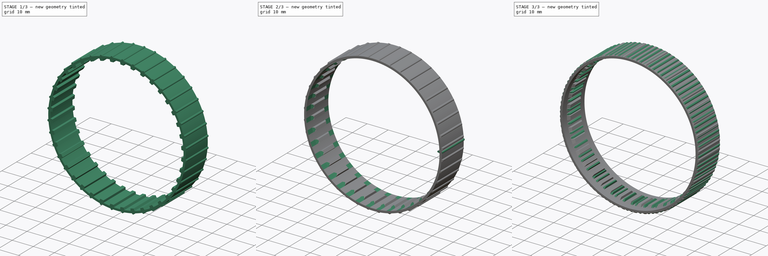
[diagram: build sequence overview — one tinted view per stage of 3, left to right]
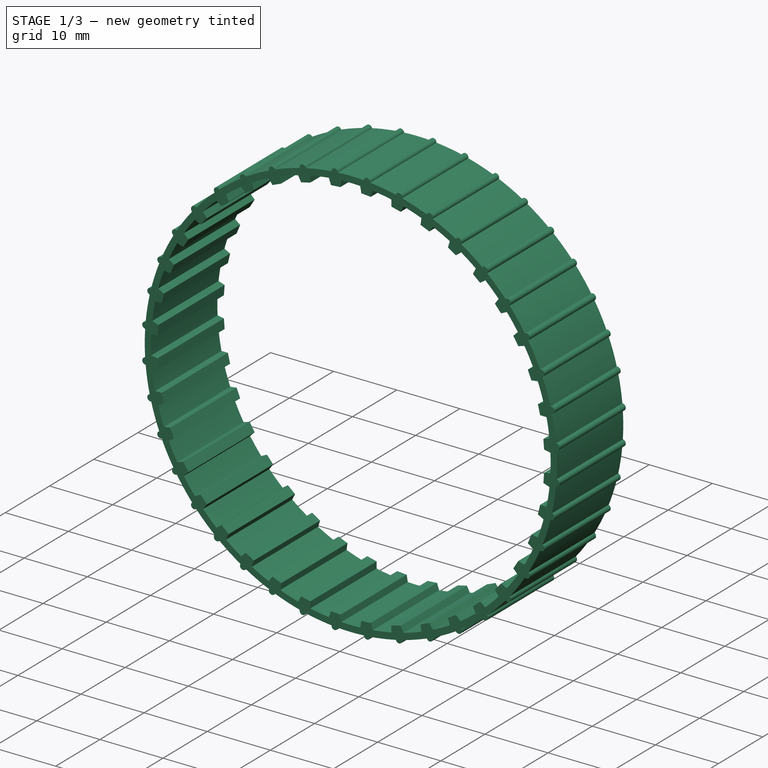
[diagram: stage 1 of 3 — iso view after this stage's code; geometry added in this stage tinted green]
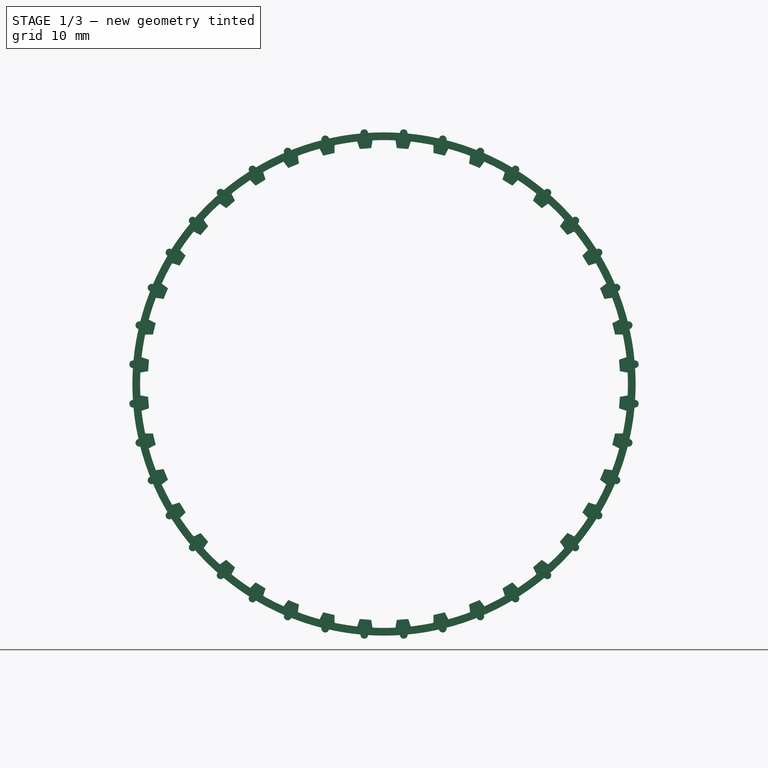
[diagram: stage 1 of 3 — front view after this stage's code; geometry added in this stage tinted green]
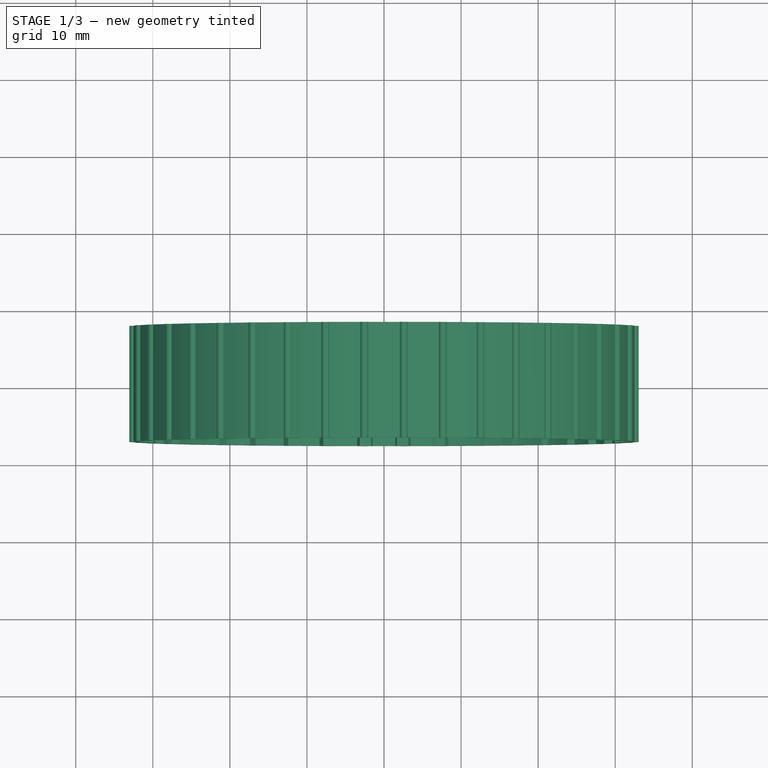
[diagram: stage 1 of 3 — top view after this stage's code; geometry added in this stage tinted green]
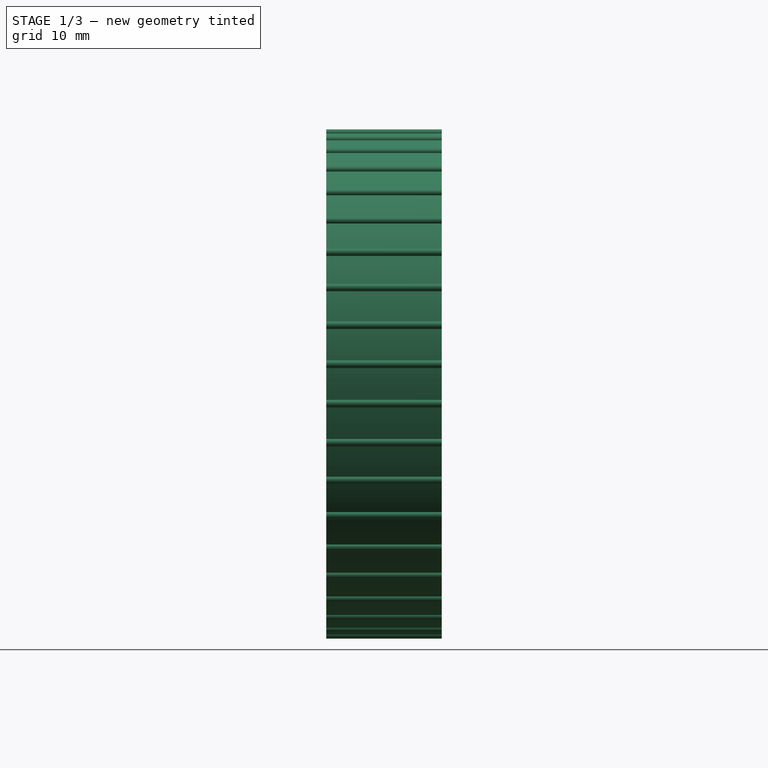
[diagram: stage 1 of 3 — right view after this stage's code; geometry added in this stage tinted green]
FCSTD DOCUMENT  (FreeCAD 0.21R33668 +7 (Git))
Label: robot-track-flex
License: All rights reserved
LicenseURL: https://en.wikipedia.org/wiki/All_rights_reserved
objects: Sketcher::SketchObject×4, PartDesign::Pad×2, PartDesign::PolarPattern×2, PartDesign::Groove×2, PartDesign::Body×2
note: 16 computed .brp shape members not serialized (recipe doc carries the construction recipe); baked Part::Feature solids carry a one-line shape summary decoded from their .brp

FEATURE [PartDesign::Body] Body  label="2mm"
  Group = -> [Sketch,Pad,PolarPattern,Sketch001,Groove]
  Origin = -> Origin
  Tip = -> Groove
FEATURE [Sketcher::SketchObject] Sketch002
  FullyConstrained = true
  MapMode = 5
  Placement = pos=(0,0,0) rot=(1,0,0;1.5708rad)
  Support = -> [XZ_Plane001]
  sketch-geometry (17):
    g0: Circle CenterX=0 CenterY=0 CenterZ=0 NormalX=0 NormalY=0 NormalZ=1 AngleXU=0 Radius=32.15
    g1: LineSegment StartX=0 StartY=0 StartZ=0 EndX=32.248 EndY=5.10759 EndZ=0
    g2: LineSegment StartX=30.4967 StartY=3.15246 StartZ=0 EndX=31.4582 EndY=3.47891 EndZ=0
    g3: LineSegment StartX=30.4967 StartY=3.15246 StartZ=0 EndX=30.6144 EndY=1.65708 EndZ=0
    g4: LineSegment StartX=31.6151 StartY=1.48507 StartZ=0 EndX=30.6144 EndY=1.65708 EndZ=0
    g5: ArcOfCircle CenterX=32.5494 CenterY=2.56169 CenterZ=0 NormalX=0 NormalY=0 NormalZ=1 AngleXU=0 Radius=0.5 StartAngle=4.78327 EndAngle=7.94018
    g6: LineSegment StartX=32.248 StartY=5.10759 StartZ=0 EndX=31.2603 EndY=4.95115 EndZ=0
    g7: ArcOfCircle CenterX=0 CenterY=0 CenterZ=0 NormalX=0 NormalY=0 NormalZ=1 AngleXU=0 Radius=31.65 StartAngle=0.110141 EndAngle=0.15708
    g8: ArcOfCircle CenterX=0 CenterY=0 CenterZ=0 NormalX=0 NormalY=0 NormalZ=1 AngleXU=0 Radius=31.65 StartAngle=0 EndAngle=0.046939
    g9: ArcOfCircle CenterX=0 CenterY=0 CenterZ=0 NormalX=0 NormalY=0 NormalZ=1 AngleXU=0 Radius=32.65 StartAngle=0.0938539 EndAngle=0.15708
    g10: ArcOfCircle CenterX=0 CenterY=0 CenterZ=0 NormalX=0 NormalY=0 NormalZ=1 AngleXU=0 Radius=32.65 StartAngle=0 EndAngle=0.0632257
    g11: LineSegment StartX=31.65 StartY=0 StartZ=0 EndX=32.65 EndY=0 EndZ=0
    g12: LineSegment StartX=32.5494 StartY=2.56169 StartZ=0 EndX=0 EndY=0 EndZ=0
    g13: Circle CenterX=0 CenterY=0 CenterZ=0 NormalX=0 NormalY=0 NormalZ=1 AngleXU=0 Radius=32.65
    g14: GeomPoint X=32.0509 Y=2.52246 Z=0
    g15: GeomPoint X=31.5524 Y=2.48323 Z=0
    g16: GeomPoint X=30.5555 Y=2.40477 Z=0
  constraints (45):
    c: Coincident(g0,g-1)
    c: Radius(g0) = 32.15
    c: Coincident(g1,g0)
    c: Angle(g-1,g1) = 0.15708
    c: Coincident(g3,g2)
    c: Coincident(g4,g3)
    c: Coincident(g6,g1)
    c: PointOnObject(g6,g1)
    c: Coincident(g7,g0)
    c: Coincident(g7,g6)
    c: Coincident(g7,g2)
    c: Coincident(g8,g7)
    c: Coincident(g8,g4)
    c: PointOnObject(g8,g-1)
    c: Coincident(g9,g7)
    c: Coincident(g9,g6)
    c: Coincident(g9,g5)
    c: Coincident(g10,g7)
    c: Coincident(g10,g5)
    c: Coincident(g11,g8)
    c: Coincident(g11,g10)
    c: Coincident(g12,g5)
    c: Symmetric(g2,g3,g12)
    c: Radius(g5) = 0.5
    c: DistanceX(g11,g11) = 1
    c: Coincident(g12,g7)
    c: Symmetric(g6,g8,g12)
    c: Equal(g2,g4)
    c: Coincident(g13,g7)
    c: PointOnObject(g5,g13)
    c: PointOnObject(g10,g13)
    c: PointOnObject(g6,g13)
    c: PointOnObject(g14,g0)
    c: PointOnObject(g14,g12)
    c: PointOnObject(g10,g-1)
    c: Distance(g2,g3) = 1.5
    c: Distance(g2,g4) = 2
    c: Distance(g6,g8) = 4.96646
    c: DistanceX(g7,g8) = 31.65
    c: Distance(g14,g5) = 0.5
    c: PointOnObject(g15,g12)
    c: PointOnObject(g15,g7)
    c: PointOnObject(g16,g12)
    c: PointOnObject(g16,g3)
    c: Distance(g16,g15) = 1
FEATURE [PartDesign::Pad] Pad001
  Direction = (0,-1,-2e-16)
  Length = 15
  Length2 = 10
  Midplane = true
  Placement = pos=(0,0,0) rot=(1,0,0;1.5708rad)
  Profile = -> Sketch002
  ReferenceAxis = -> Sketch002 [N_Axis]
  Type = 0
FEATURE [PartDesign::PolarPattern] PolarPattern001
  Angle = 360
  Axis = -> Sketch002 [N_Axis]
  BaseFeature = -> Pad001
  Occurrences = 40
  Originals = -> [Pad001]
  Placement = pos=(0,0,0) rot=(1,0,0;1.5708rad)
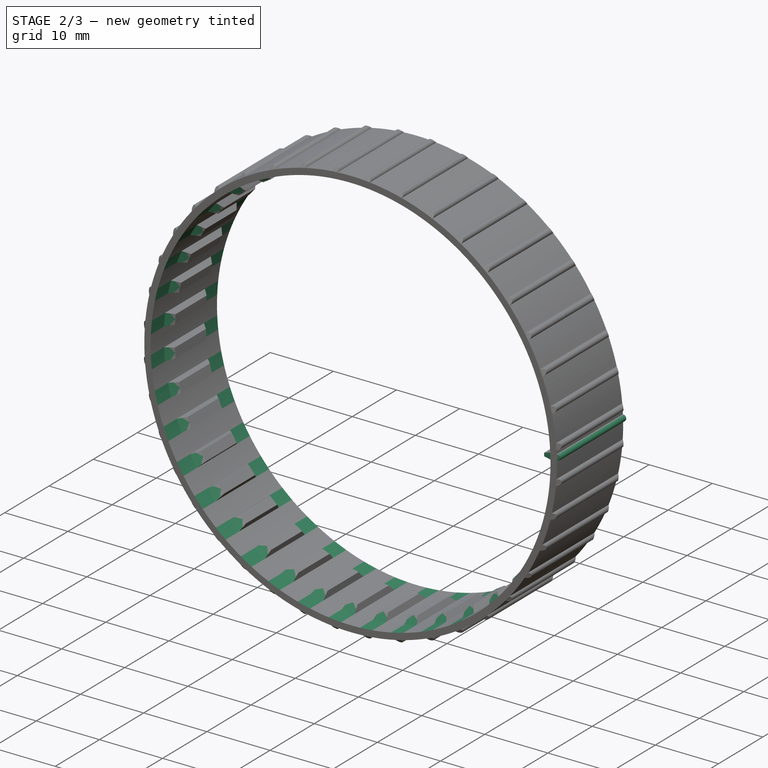
[diagram: stage 2 of 3 — iso view after this stage's code; geometry added in this stage tinted green]
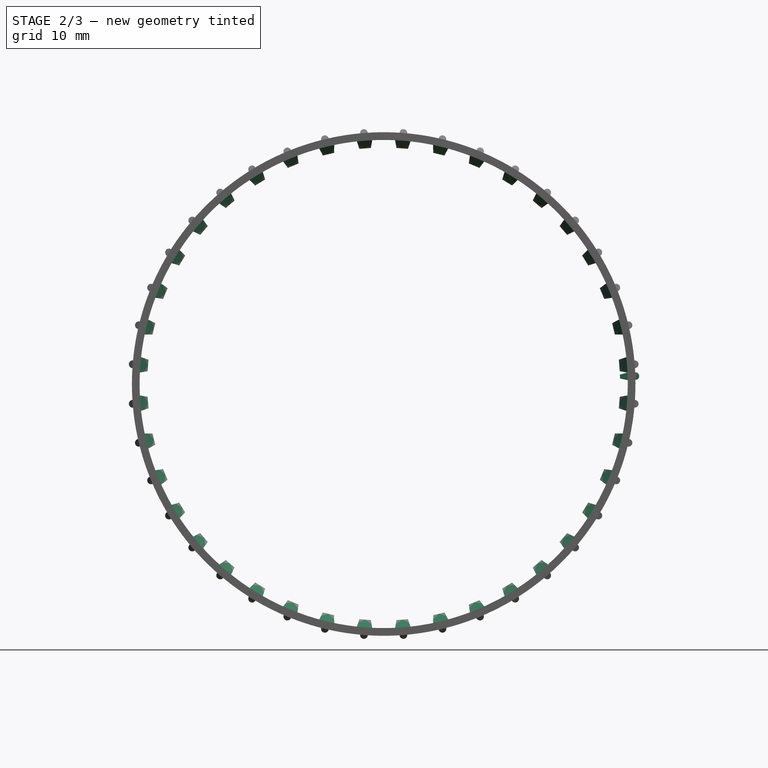
[diagram: stage 2 of 3 — front view after this stage's code; geometry added in this stage tinted green]
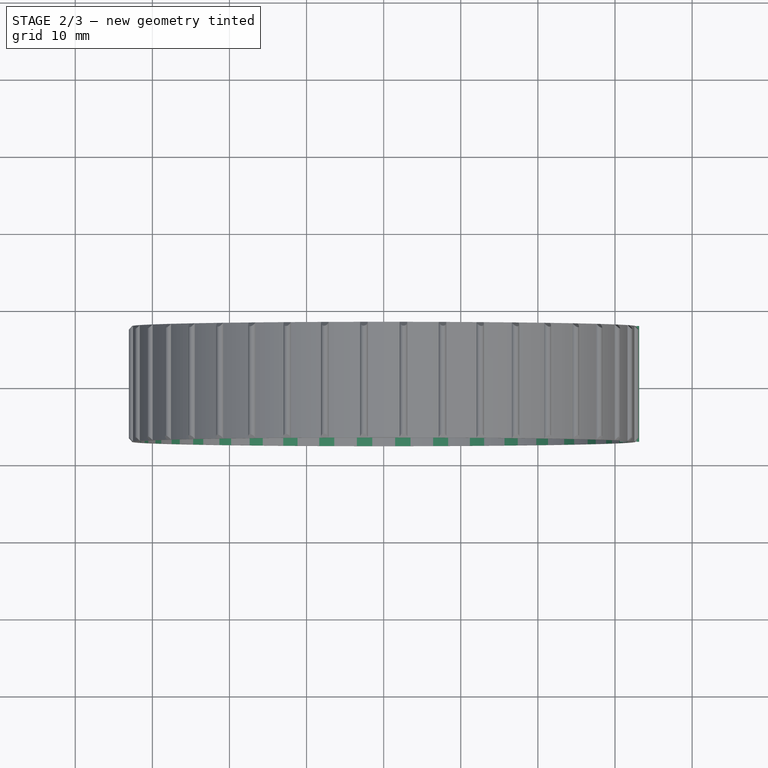
[diagram: stage 2 of 3 — top view after this stage's code; geometry added in this stage tinted green]
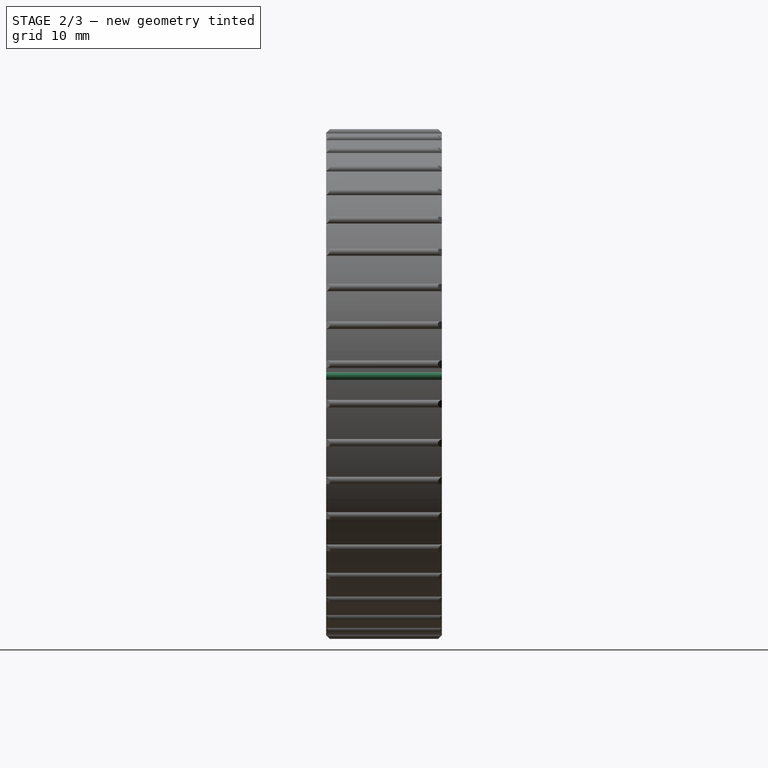
[diagram: stage 2 of 3 — right view after this stage's code; geometry added in this stage tinted green]
FEATURE [Sketcher::SketchObject] Sketch
  FullyConstrained = true
  MapMode = 5
  Placement = pos=(0,0,0) rot=(1,0,0;1.5708rad)
  Support = -> [XZ_Plane]
  sketch-geometry (15):
    g0: Circle CenterX=0 CenterY=0 CenterZ=0 NormalX=0 NormalY=0 NormalZ=1 AngleXU=0 Radius=32.15
    g1: LineSegment StartX=0 StartY=0 StartZ=0 EndX=32.5856 EndY=2.05011 EndZ=0
    g2: LineSegment StartX=30.6343 StartY=1.21284 StartZ=0 EndX=31.6147 EndY=1.49378 EndZ=0
    g3: LineSegment StartX=30.6343 StartY=1.21284 StartZ=0 EndX=30.65 EndY=0.713092 EndZ=0
    g4: LineSegment StartX=31.6461 StartY=0.494273 StartZ=0 EndX=30.65 EndY=0.713092 EndZ=0
    g5: ArcOfCircle CenterX=32.6339 CenterY=1.02556 CenterZ=0 NormalX=0 NormalY=0 NormalZ=1 AngleXU=0 Radius=0.5 StartAngle=4.73615 EndAngle=7.89305
    g6: LineSegment StartX=32.5856 StartY=2.05011 StartZ=0 EndX=31.5875 EndY=1.98732 EndZ=0
    g7: ArcOfCircle CenterX=0 CenterY=0 CenterZ=0 NormalX=0 NormalY=0 NormalZ=1 AngleXU=0 Radius=31.65 StartAngle=0.0472144 EndAngle=0.0628319
    g8: ArcOfCircle CenterX=0 CenterY=0 CenterZ=0 NormalX=0 NormalY=0 NormalZ=1 AngleXU=0 Radius=31.65 StartAngle=0 EndAngle=0.0156175
    g9: ArcOfCircle CenterX=0 CenterY=0 CenterZ=0 NormalX=0 NormalY=0 NormalZ=1 AngleXU=0 Radius=32.65 StartAngle=0.04673 EndAngle=0.0628319
    g10: ArcOfCircle CenterX=0 CenterY=0 CenterZ=0 NormalX=0 NormalY=0 NormalZ=1 AngleXU=0 Radius=32.65 StartAngle=0 EndAngle=0.0161018
    g11: LineSegment StartX=31.65 StartY=0 StartZ=0 EndX=32.65 EndY=0 EndZ=0
    g12: LineSegment StartX=32.6339 StartY=1.02556 StartZ=0 EndX=0 EndY=0 EndZ=0
    g13: Circle CenterX=0 CenterY=0 CenterZ=0 NormalX=0 NormalY=0 NormalZ=1 AngleXU=0 Radius=32.65
    g14: GeomPoint X=32.1341 Y=1.00986 Z=0
  constraints (41):
    c: Coincident(g0,g-1)
    c: Radius(g0) = 32.15
    c: Coincident(g1,g0)
    c: Angle(g-1,g1) = 0.0628319
    c: Coincident(g3,g2)
    c: Coincident(g4,g3)
    c: Coincident(g6,g1)
    c: PointOnObject(g6,g1)
    c: Coincident(g7,g0)
    c: Coincident(g7,g6)
    c: Coincident(g7,g2)
    c: Coincident(g8,g7)
    c: Coincident(g8,g4)
    c: PointOnObject(g8,g-1)
    c: Coincident(g9,g7)
    c: Coincident(g9,g6)
    c: Coincident(g9,g5)
    c: Coincident(g10,g7)
    c: Coincident(g10,g5)
    c: Coincident(g11,g8)
    c: Coincident(g11,g10)
    c: Coincident(g12,g5)
    c: Symmetric(g2,g3,g12)
    c: Radius(g5) = 0.5
    c: DistanceX(g11,g11) = 1
    c: Coincident(g12,g7)
    c: DistanceX(g3,g8) = 1
    c: Symmetric(g6,g8,g12)
    c: Equal(g2,g4)
    c: Coincident(g13,g7)
    c: PointOnObject(g5,g13)
    c: PointOnObject(g10,g13)
    c: PointOnObject(g6,g13)
    c: PointOnObject(g14,g0)
    c: PointOnObject(g14,g12)
    c: PointOnObject(g10,g-1)
    c: Distance(g2,g3) = 0.5
    c: Distance(g2,g4) = 1
    c: Distance(g6,g8) = 1.9883
    c: DistanceX(g7,g8) = 31.65
    c: Distance(g14,g5) = 0.5
FEATURE [PartDesign::Pad] Pad
  Direction = (0,-1,2e-16)
  Length = 15
  Length2 = 10
  Midplane = true
  Placement = pos=(0,0,0) rot=(1,0,0;1.5708rad)
  Profile = -> Sketch
  ReferenceAxis = -> Sketch [N_Axis]
  Type = 0
FEATURE [Sketcher::SketchObject] Sketch003
  FullyConstrained = true
  MapMode = 5
  Support = -> [XY_Plane001]
  sketch-geometry (14):
    g0: LineSegment StartX=27.65 StartY=7.5 StartZ=0 EndX=27.65 EndY=-7.5 EndZ=0
    g1: LineSegment StartX=27.65 StartY=-7.5 StartZ=0 EndX=31.65 EndY=-7.5 EndZ=0
    g2: LineSegment StartX=31.65 StartY=-7.5 StartZ=0 EndX=31.65 EndY=-4.5 EndZ=0
    g3: LineSegment StartX=31.65 StartY=-4.5 StartZ=0 EndX=29.65 EndY=-2.5 EndZ=0
    g4: LineSegment StartX=29.65 StartY=-2.5 StartZ=0 EndX=29.65 EndY=2.5 EndZ=0
    g5: LineSegment StartX=29.65 StartY=2.5 StartZ=0 EndX=31.65 EndY=4.5 EndZ=0
    g6: LineSegment StartX=31.65 StartY=4.5 StartZ=0 EndX=31.65 EndY=7.5 EndZ=0
    g7: LineSegment StartX=31.65 StartY=7.5 StartZ=0 EndX=27.65 EndY=7.5 EndZ=0
    g8: LineSegment StartX=32.65 StartY=-7.5 StartZ=0 EndX=35.65 EndY=-4.5 EndZ=0
    g9: LineSegment StartX=35.65 StartY=-4.5 StartZ=0 EndX=35.65 EndY=4.5 EndZ=0
    g10: LineSegment StartX=35.65 StartY=4.5 StartZ=0 EndX=32.65 EndY=7.5 EndZ=0
    g11: LineSegment StartX=32.65 StartY=7.5 StartZ=0 EndX=37.65 EndY=7.5 EndZ=0
    g12: LineSegment StartX=37.65 StartY=7.5 StartZ=0 EndX=37.65 EndY=-7.5 EndZ=0
    g13: LineSegment StartX=37.65 StartY=-7.5 StartZ=0 EndX=32.65 EndY=-7.5 EndZ=0
  constraints (40):
    c: Coincident(g0,g1)
    c: Horizontal(g1)
    c: Coincident(g1,g2)
    c: Vertical(g2)
    c: Coincident(g2,g3)
    c: Coincident(g3,g4)
    c: Vertical(g4)
    c: Coincident(g4,g5)
    c: Coincident(g5,g6)
    c: Vertical(g6)
    c: Coincident(g6,g7)
    c: Coincident(g7,g0)
    c: Horizontal(g7)
    c: Equal(g1,g7)
    c: Equal(g6,g2)
    c: Equal(g3,g5)
    c: Symmetric(g0,g0,g-1)
    c: DistanceY(g0,g0) = 15
    c: Angle(g3,g2) = 2.35619
    c: DistanceY(g4,g4) = 5
    c: DistanceX(g3,g2) = 2
    c: DistanceX(g1,g1) = 4
    c: DistanceX(g-1,g1) = 31.65
    c: Coincident(g8,g9)
    c: Vertical(g9)
    c: Coincident(g9,g10)
    c: Coincident(g10,g11)
    c: Horizontal(g11)
    c: Coincident(g11,g12)
    c: Vertical(g12)
    c: Coincident(g12,g13)
    c: Coincident(g13,g8)
    c: Horizontal(g13)
    c: DistanceX(g-1,g8) = 32.65
    c: Symmetric(g10,g8,g-1)
    c: Angle(g10,g11) = 0.785398
    c: Equal(g10,g8)
    c: DistanceX(g8,g8) = 3
    c: DistanceX(g13,g13) = 5
    c: Equal(g0,g12)
FEATURE [PartDesign::Groove] Groove001
  Angle = 360
  Axis = (0,1,0)
  Base = (0,0,0)
  BaseFeature = -> PolarPattern001
  Placement = pos=(0,0,0) rot=(1,0,0;1.5708rad)
  Profile = -> Sketch003
  ReferenceAxis = -> Sketch003 [V_Axis]
FEATURE [PartDesign::Body] Body001  label="5mm"
  Group = -> [Sketch002,Pad001,PolarPattern001,Sketch003,Groove001]
  Origin = -> Origin001
  Tip = -> Groove001
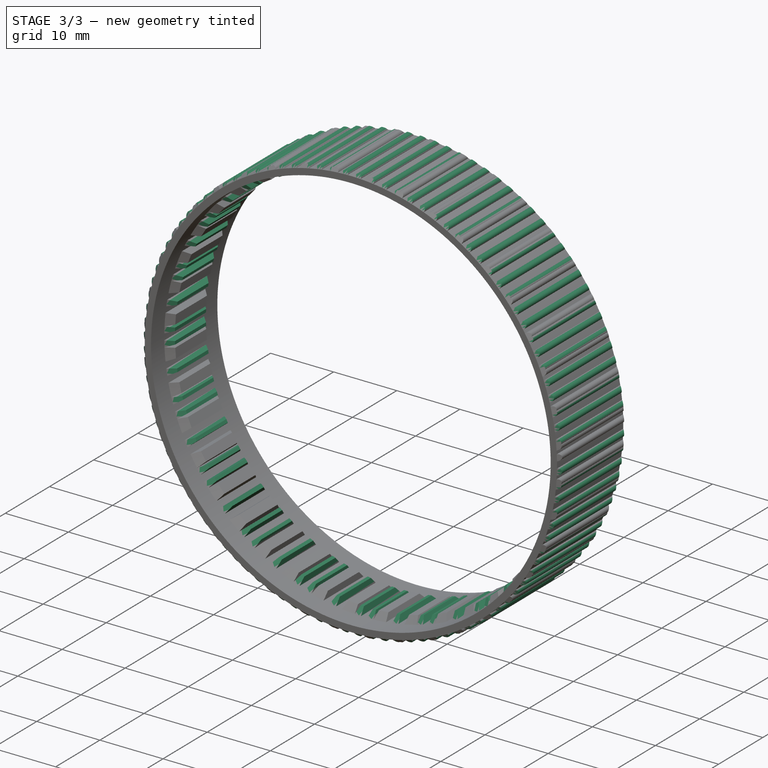
[diagram: stage 3 of 3 — iso view after this stage's code; geometry added in this stage tinted green]
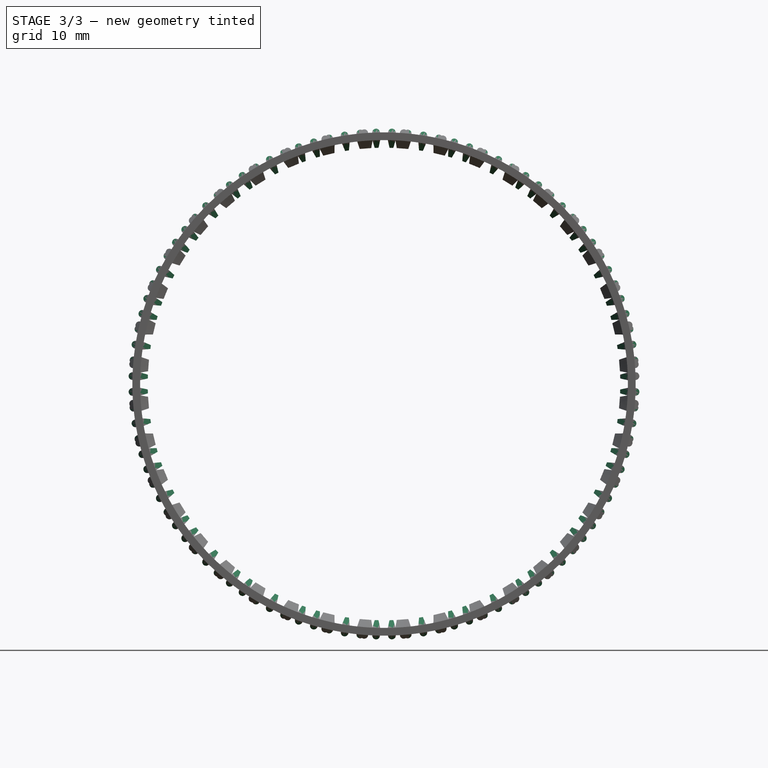
[diagram: stage 3 of 3 — front view after this stage's code; geometry added in this stage tinted green]
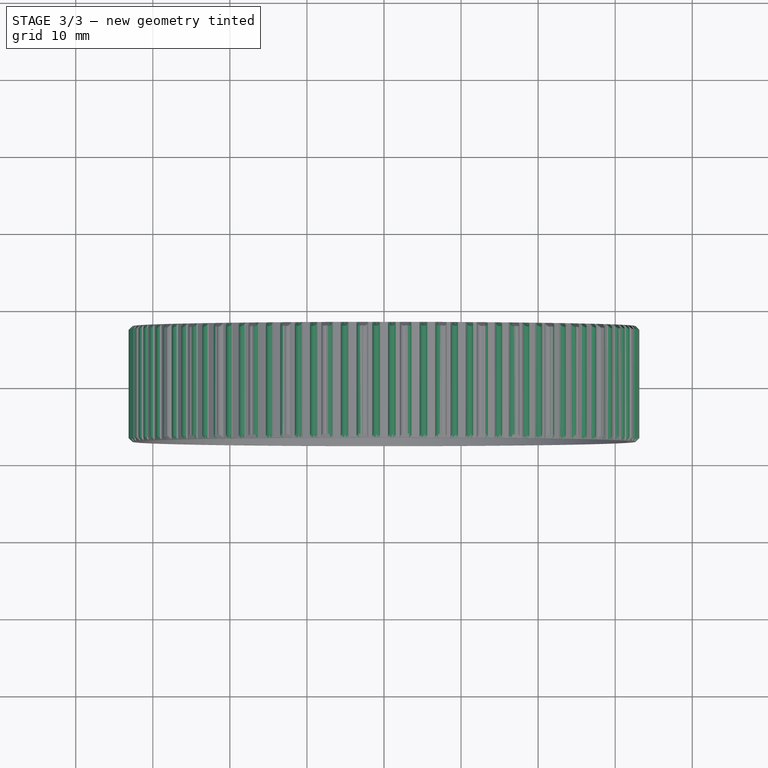
[diagram: stage 3 of 3 — top view after this stage's code; geometry added in this stage tinted green]
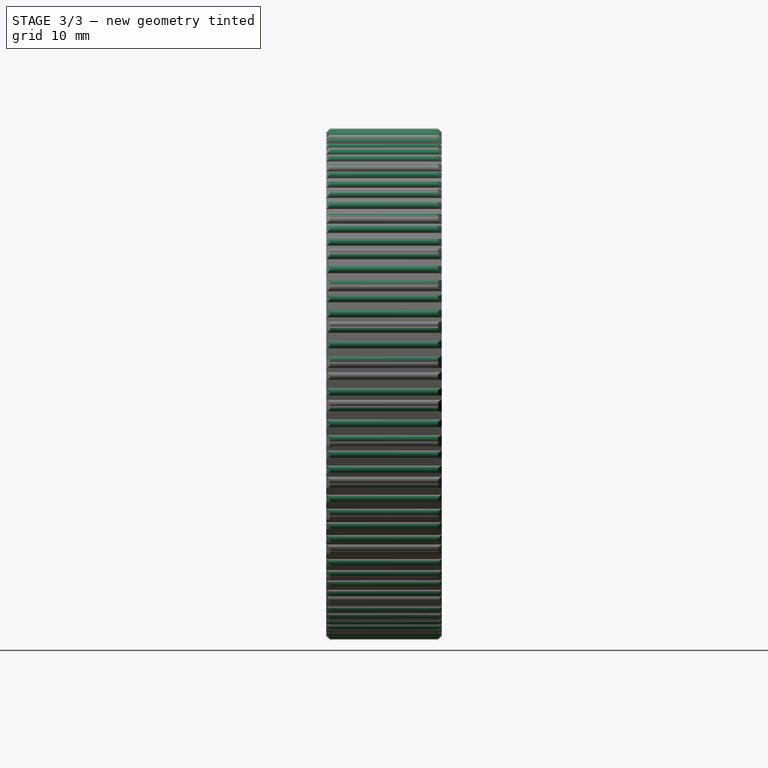
[diagram: stage 3 of 3 — right view after this stage's code; geometry added in this stage tinted green]
FEATURE [PartDesign::PolarPattern] PolarPattern
  Angle = 360
  Axis = -> Sketch [N_Axis]
  BaseFeature = -> Pad
  Occurrences = 100
  Originals = -> [Pad]
  Placement = pos=(0,0,0) rot=(1,0,0;1.5708rad)
FEATURE [Sketcher::SketchObject] Sketch001
  FullyConstrained = true
  MapMode = 5
  Support = -> [XY_Plane]
  sketch-geometry (14):
    g0: LineSegment StartX=27.65 StartY=7.5 StartZ=0 EndX=27.65 EndY=-7.5 EndZ=0
    g1: LineSegment StartX=27.65 StartY=-7.5 StartZ=0 EndX=31.65 EndY=-7.5 EndZ=0
    g2: LineSegment StartX=31.65 StartY=-7.5 StartZ=0 EndX=31.65 EndY=-4.5 EndZ=0
    g3: LineSegment StartX=31.65 StartY=-4.5 StartZ=0 EndX=29.65 EndY=-2.5 EndZ=0
    g4: LineSegment StartX=29.65 StartY=-2.5 StartZ=0 EndX=29.65 EndY=2.5 EndZ=0
    g5: LineSegment StartX=29.65 StartY=2.5 StartZ=0 EndX=31.65 EndY=4.5 EndZ=0
    g6: LineSegment StartX=31.65 StartY=4.5 StartZ=0 EndX=31.65 EndY=7.5 EndZ=0
    g7: LineSegment StartX=31.65 StartY=7.5 StartZ=0 EndX=27.65 EndY=7.5 EndZ=0
    g8: LineSegment StartX=32.65 StartY=-7.5 StartZ=0 EndX=35.65 EndY=-4.5 EndZ=0
    g9: LineSegment StartX=35.65 StartY=-4.5 StartZ=0 EndX=35.65 EndY=4.5 EndZ=0
    g10: LineSegment StartX=35.65 StartY=4.5 StartZ=0 EndX=32.65 EndY=7.5 EndZ=0
    g11: LineSegment StartX=32.65 StartY=7.5 StartZ=0 EndX=37.65 EndY=7.5 EndZ=0
    g12: LineSegment StartX=37.65 StartY=7.5 StartZ=0 EndX=37.65 EndY=-7.5 EndZ=0
    g13: LineSegment StartX=37.65 StartY=-7.5 StartZ=0 EndX=32.65 EndY=-7.5 EndZ=0
  constraints (40):
    c: Coincident(g0,g1)
    c: Horizontal(g1)
    c: Coincident(g1,g2)
    c: Vertical(g2)
    c: Coincident(g2,g3)
    c: Coincident(g3,g4)
    c: Vertical(g4)
    c: Coincident(g4,g5)
    c: Coincident(g5,g6)
    c: Vertical(g6)
    c: Coincident(g6,g7)
    c: Coincident(g7,g0)
    c: Horizontal(g7)
    c: Equal(g1,g7)
    c: Equal(g6,g2)
    c: Equal(g3,g5)
    c: Symmetric(g0,g0,g-1)
    c: DistanceY(g0,g0) = 15
    c: Angle(g3,g2) = 2.35619
    c: DistanceY(g4,g4) = 5
    c: DistanceX(g3,g2) = 2
    c: DistanceX(g1,g1) = 4
    c: DistanceX(g-1,g1) = 31.65
    c: Coincident(g8,g9)
    c: Vertical(g9)
    c: Coincident(g9,g10)
    c: Coincident(g10,g11)
    c: Horizontal(g11)
    c: Coincident(g11,g12)
    c: Vertical(g12)
    c: Coincident(g12,g13)
    c: Coincident(g13,g8)
    c: Horizontal(g13)
    c: DistanceX(g-1,g8) = 32.65
    c: Symmetric(g10,g8,g-1)
    c: Angle(g10,g11) = 0.785398
    c: Equal(g10,g8)
    c: DistanceX(g8,g8) = 3
    c: DistanceX(g13,g13) = 5
    c: Equal(g0,g12)
FEATURE [PartDesign::Groove] Groove
  Angle = 360
  Axis = (0,1,0)
  Base = (0,0,0)
  BaseFeature = -> PolarPattern
  Placement = pos=(0,0,0) rot=(1,0,0;1.5708rad)
  Profile = -> Sketch001
  ReferenceAxis = -> Sketch001 [V_Axis]
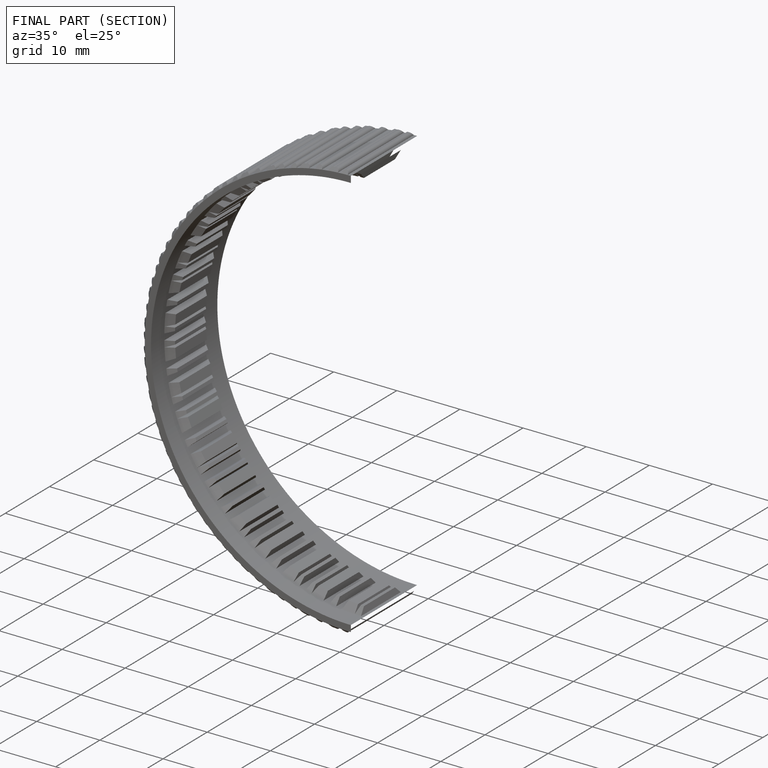
[diagram: finished part — half-section view (interior)]
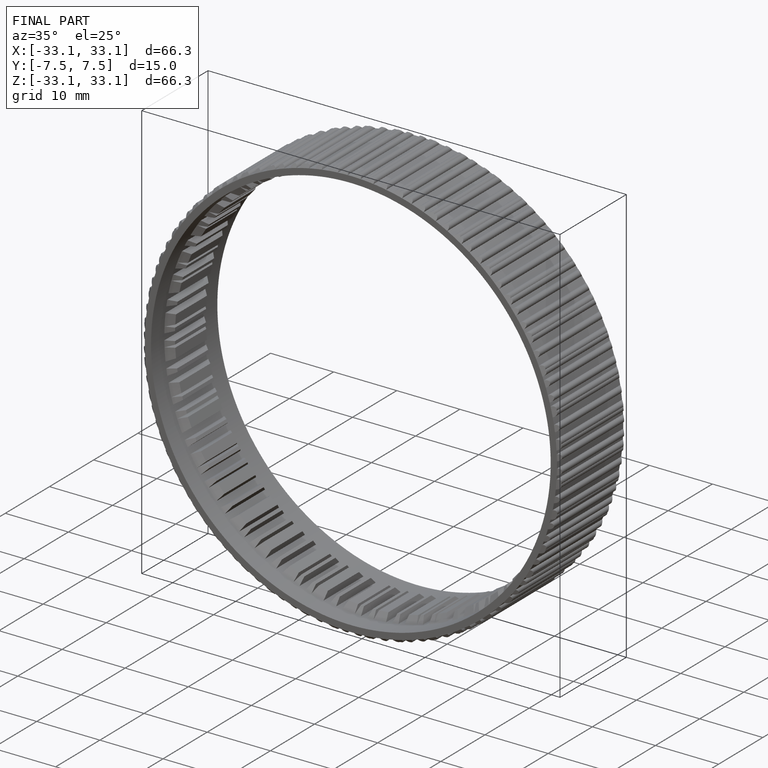
[diagram: finished part — iso view with bounding-box wireframe]
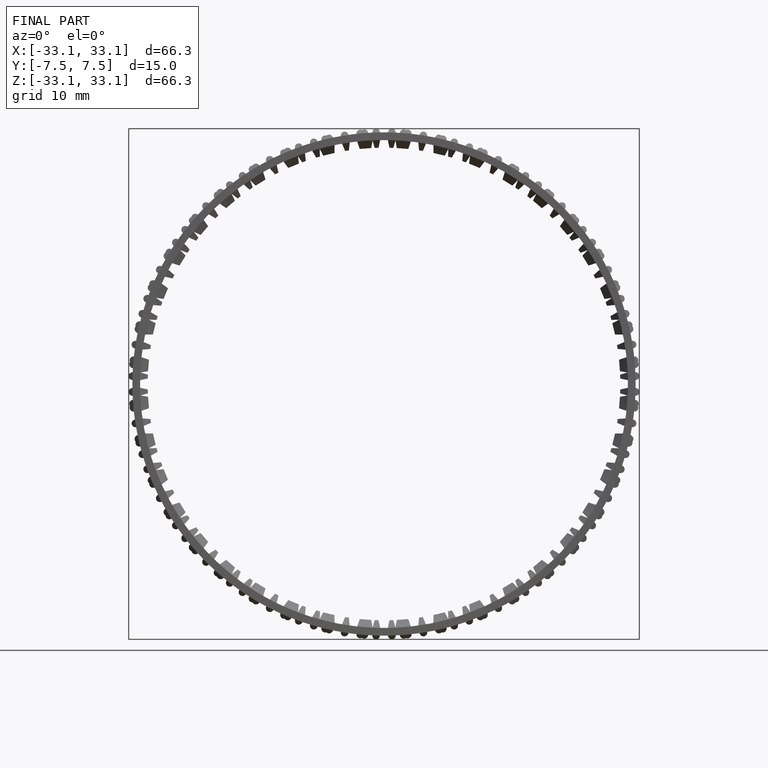
[diagram: finished part — front view with bounding-box wireframe]
